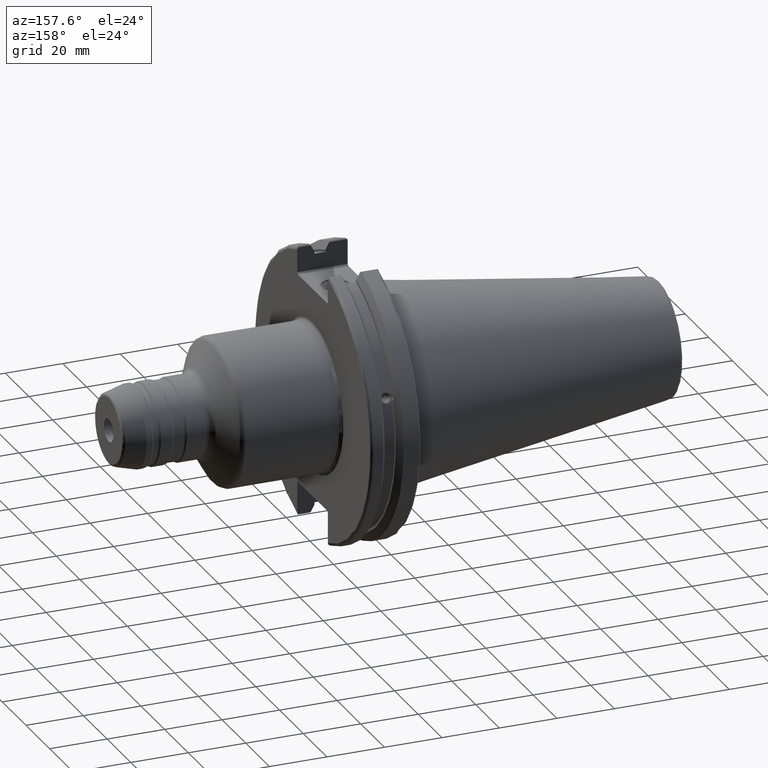
[diagram: clean part render]
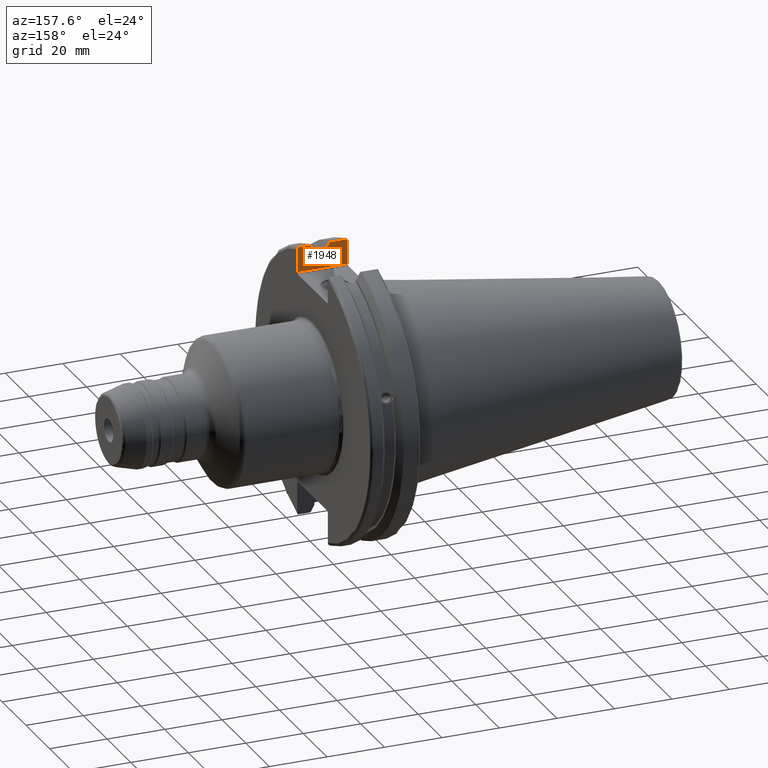
[diagram: same view with one face highlighted and labeled with its STEP entity id]
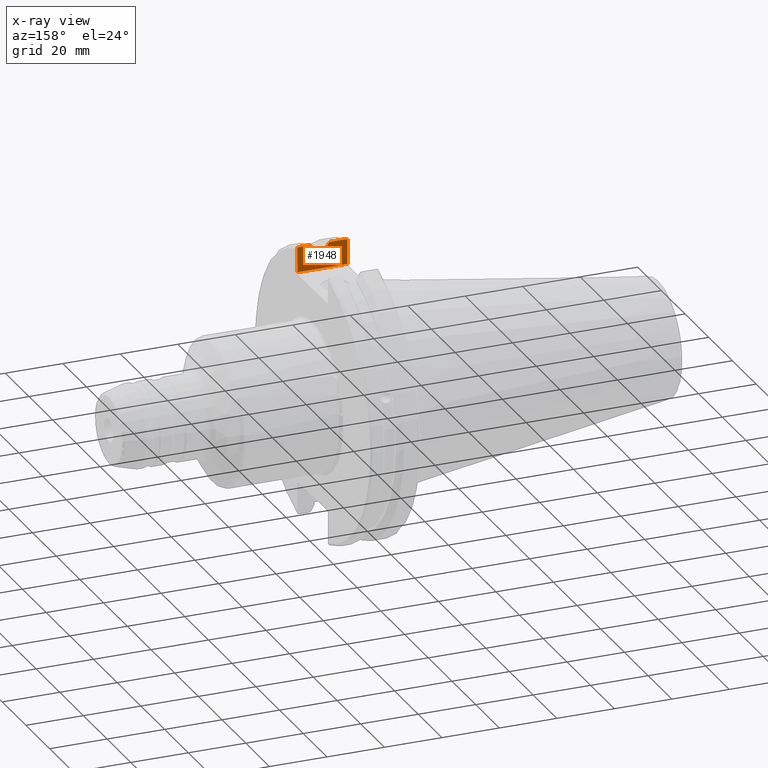
[diagram: x-ray of the same camera — body ghosted, the highlighted face saturated]
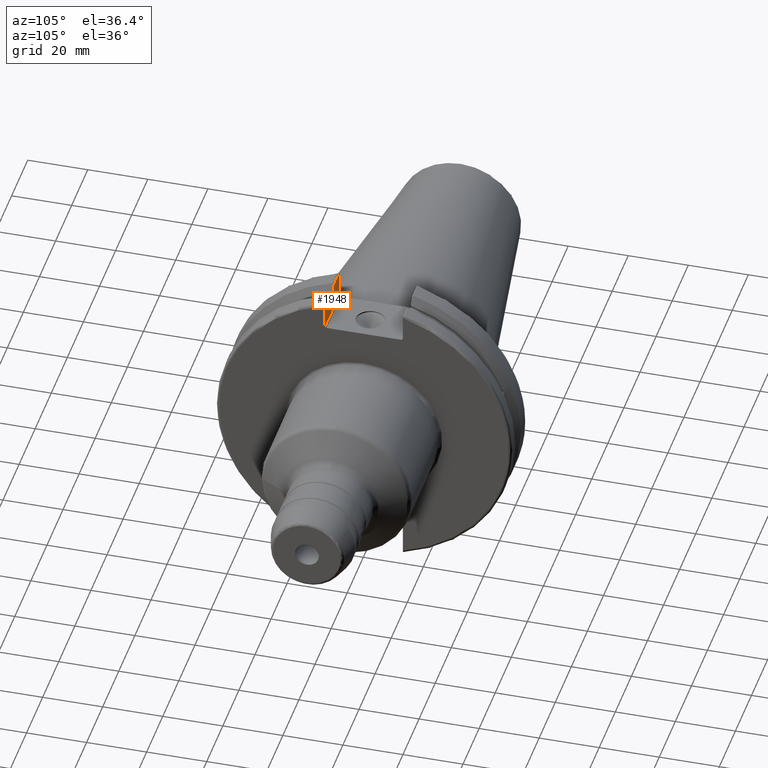
[diagram: same view with one face highlighted and labeled with its STEP entity id]
A machine part, auxiliary view. The second image highlights one B-rep face of the part: STEP entity #1948.
The next image is the same camera in x-ray: the body ghosted, the highlighted face saturated — about 0% of this face is hidden behind the body in this view.
A second angle (auxiliary view) of the same face is appended — the face is thin or edge-on in the first view.
In plain terms, the highlighted planar face has unit normal (-0, -1, 0).
Its self-contained STEP definition (entity closure, byte-faithful):
#18=(
BOUNDED_CURVE()
B_SPLINE_CURVE(2,(#3363,#3364,#3365),.UNSPECIFIED.,.F.,.F.)
B_SPLINE_CURVE_WITH_KNOTS((3,3),(0.0558332664491618,0.331657177124504),
 .UNSPECIFIED.)
CURVE()
GEOMETRIC_REPRESENTATION_ITEM()
RATIONAL_B_SPLINE_CURVE((1.0001287363711,1.00038235575444,1.))
REPRESENTATION_ITEM('')
);
#25=(
BOUNDED_CURVE()
B_SPLINE_CURVE(2,(#3724,#3725,#3726),.UNSPECIFIED.,.F.,.F.)
B_SPLINE_CURVE_WITH_KNOTS((3,3),(0.,0.275823910672366),.UNSPECIFIED.)
CURVE()
GEOMETRIC_REPRESENTATION_ITEM()
RATIONAL_B_SPLINE_CURVE((1.,1.00038235575046,1.00012873636977))
REPRESENTATION_ITEM('')
);
#65=B_SPLINE_CURVE_WITH_KNOTS('',3,(#3684,#3685,#3686,#3687,#3688,#3689),
 .UNSPECIFIED.,.F.,.F.,(4,2,4),(0.452859340315923,0.491741138916218,0.506051994111224),
 .UNSPECIFIED.);
#68=B_SPLINE_CURVE_WITH_KNOTS('',3,(#3715,#3716,#3717,#3718,#3719,#3720),
 .UNSPECIFIED.,.F.,.F.,(4,2,4),(0.0976892167532866,0.112000071948292,0.150881870548587),
 .UNSPECIFIED.);
#107=PLANE('',#2187);
#166=LINE('',#3011,#272);
#213=LINE('',#3711,#319);
#214=LINE('',#3713,#320);
#215=LINE('',#3722,#321);
#216=LINE('',#3728,#322);
#217=LINE('',#3730,#323);
#218=LINE('',#3731,#324);
#219=LINE('',#3732,#325);
#272=VECTOR('',#2443,10.);
#319=VECTOR('',#2670,10.);
#320=VECTOR('',#2671,10.);
#321=VECTOR('',#2672,10.);
#322=VECTOR('',#2673,10.);
#323=VECTOR('',#2674,10.);
#324=VECTOR('',#2675,10.);
#325=VECTOR('',#2676,10.);
#462=FACE_OUTER_BOUND('',#584,.T.);
#584=EDGE_LOOP('',(#1635,#1636,#1637,#1638,#1639,#1640,#1641,#1642,#1643,
#1644,#1645,#1646));
#819=VERTEX_POINT('',#3008);
#820=VERTEX_POINT('',#3010);
#869=VERTEX_POINT('',#3358);
#870=VERTEX_POINT('',#3362);
#916=VERTEX_POINT('',#3683);
#919=VERTEX_POINT('',#3710);
#920=VERTEX_POINT('',#3712);
#921=VERTEX_POINT('',#3714);
#922=VERTEX_POINT('',#3721);
#923=VERTEX_POINT('',#3723);
#924=VERTEX_POINT('',#3727);
#925=VERTEX_POINT('',#3729);
#1040=EDGE_CURVE('',#819,#820,#166,.T.);
#1107=EDGE_CURVE('',#869,#870,#18,.T.);
#1173=EDGE_CURVE('',#820,#916,#65,.T.);
#1177=EDGE_CURVE('',#919,#819,#213,.T.);
#1178=EDGE_CURVE('',#920,#919,#214,.T.);
#1179=EDGE_CURVE('',#921,#920,#68,.T.);
#1180=EDGE_CURVE('',#922,#921,#215,.T.);
#1181=EDGE_CURVE('',#923,#922,#25,.T.);
#1182=EDGE_CURVE('',#924,#923,#216,.T.);
#1183=EDGE_CURVE('',#925,#924,#217,.T.);
#1184=EDGE_CURVE('',#870,#925,#218,.T.);
#1185=EDGE_CURVE('',#916,#869,#219,.T.);
#1635=ORIENTED_EDGE('',*,*,#1173,.F.);
#1636=ORIENTED_EDGE('',*,*,#1040,.F.);
#1637=ORIENTED_EDGE('',*,*,#1177,.F.);
#1638=ORIENTED_EDGE('',*,*,#1178,.F.);
#1639=ORIENTED_EDGE('',*,*,#1179,.F.);
#1640=ORIENTED_EDGE('',*,*,#1180,.F.);
#1641=ORIENTED_EDGE('',*,*,#1181,.F.);
#1642=ORIENTED_EDGE('',*,*,#1182,.F.);
#1643=ORIENTED_EDGE('',*,*,#1183,.F.);
#1644=ORIENTED_EDGE('',*,*,#1184,.F.);
#1645=ORIENTED_EDGE('',*,*,#1107,.F.);
#1646=ORIENTED_EDGE('',*,*,#1185,.F.);
#1948=ADVANCED_FACE('',(#462),#107,.F.);
#2187=AXIS2_PLACEMENT_3D('',#3709,#2668,#2669);
#2443=DIRECTION('',(0.,0.,1.));
#2668=DIRECTION('center_axis',(-1.19700595646917E-16,-1.,0.));
#2669=DIRECTION('ref_axis',(1.,-1.19700595646917E-16,0.));
#2670=DIRECTION('',(1.,-1.19700595646917E-16,0.));
#2671=DIRECTION('',(0.,0.,-1.));
#2672=DIRECTION('',(-1.,1.19700595646917E-16,0.));
#2673=DIRECTION('',(0.,0.,1.));
#2674=DIRECTION('',(-1.,0.,0.));
#2675=DIRECTION('',(0.,0.,-1.));
#2676=DIRECTION('',(-1.,1.19700595646917E-16,0.));
#3008=CARTESIAN_POINT('',(19.05,-12.95,38.219));
#3010=CARTESIAN_POINT('',(19.05,-12.95,46.4407434937254));
#3011=CARTESIAN_POINT('',(19.05,-12.95,18.8595));
#3358=CARTESIAN_POINT('',(14.3818103943757,-12.95,46.9780755322918));
#3362=CARTESIAN_POINT('',(13.0491,-12.95,44.5791147973605));
#3363=CARTESIAN_POINT('Ctrl Pts',(14.3818103943757,-12.95,46.9780755322918));
#3364=CARTESIAN_POINT('Ctrl Pts',(13.6979955094449,-12.95,45.749496680221));
#3365=CARTESIAN_POINT('Ctrl Pts',(13.0491,-12.95,44.5791147973605));
#3683=CARTESIAN_POINT('',(18.9055020570566,-12.95,46.9780755322918));
#3684=CARTESIAN_POINT('Ctrl Pts',(19.05,-12.95,46.4407434937254));
#3685=CARTESIAN_POINT('Ctrl Pts',(19.05,-12.95,46.5703494890597));
#3686=CARTESIAN_POINT('Ctrl Pts',(19.0204646992875,-12.95,46.7230464903732));
#3687=CARTESIAN_POINT('Ctrl Pts',(18.9538432708766,-12.95,46.887363294568));
#3688=CARTESIAN_POINT('Ctrl Pts',(18.9315844351616,-12.95,46.9333752207329));
#3689=CARTESIAN_POINT('Ctrl Pts',(18.9055020570566,-12.95,46.9780755322918));
#3709=CARTESIAN_POINT('Origin',(1.5,-12.95,37.719));
#3710=CARTESIAN_POINT('',(1.5,-12.95,38.219));
#3711=CARTESIAN_POINT('',(9.375,-12.95,38.219));
#3712=CARTESIAN_POINT('',(1.5,-12.95,46.4407434937254));
#3713=CARTESIAN_POINT('',(1.5,-12.95,18.8595));
#3714=CARTESIAN_POINT('',(1.64449794294344,-12.95,46.9780755322918));
#3715=CARTESIAN_POINT('Ctrl Pts',(1.64449794294344,-12.95,46.9780755322918));
#3716=CARTESIAN_POINT('Ctrl Pts',(1.61841556483839,-12.95,46.9333752207329));
#3717=CARTESIAN_POINT('Ctrl Pts',(1.59615672912336,-12.95,46.887363294568));
#3718=CARTESIAN_POINT('Ctrl Pts',(1.52953530071253,-12.95,46.7230464903732));
#3719=CARTESIAN_POINT('Ctrl Pts',(1.5,-12.95,46.5703494890597));
#3720=CARTESIAN_POINT('Ctrl Pts',(1.5,-12.95,46.4407434937254));
#3721=CARTESIAN_POINT('',(7.88638960562425,-12.95,46.9780755322918));
#3722=CARTESIAN_POINT('',(4.55399548297564,-12.95,46.9780755322918));
#3723=CARTESIAN_POINT('',(9.2191,-12.95,44.5791147973604));
#3724=CARTESIAN_POINT('Ctrl Pts',(9.2191,-12.95,44.5791147973604));
#3725=CARTESIAN_POINT('Ctrl Pts',(8.57020449052102,-12.95,45.7494966802823));
#3726=CARTESIAN_POINT('Ctrl Pts',(7.88638960562425,-12.95,46.9780755322918));
#3727=CARTESIAN_POINT('',(9.2191,-12.95,43.7678716897452));
#3728=CARTESIAN_POINT('',(9.2191,-12.95,18.8595));
#3729=CARTESIAN_POINT('',(13.0491,-12.95,43.7678716897452));
#3730=CARTESIAN_POINT('',(11.1341,-12.95,43.7678716897452));
#3731=CARTESIAN_POINT('',(13.0491,-12.95,18.8595));
#3732=CARTESIAN_POINT('',(16.8551045170244,-12.95,46.9780755322918));